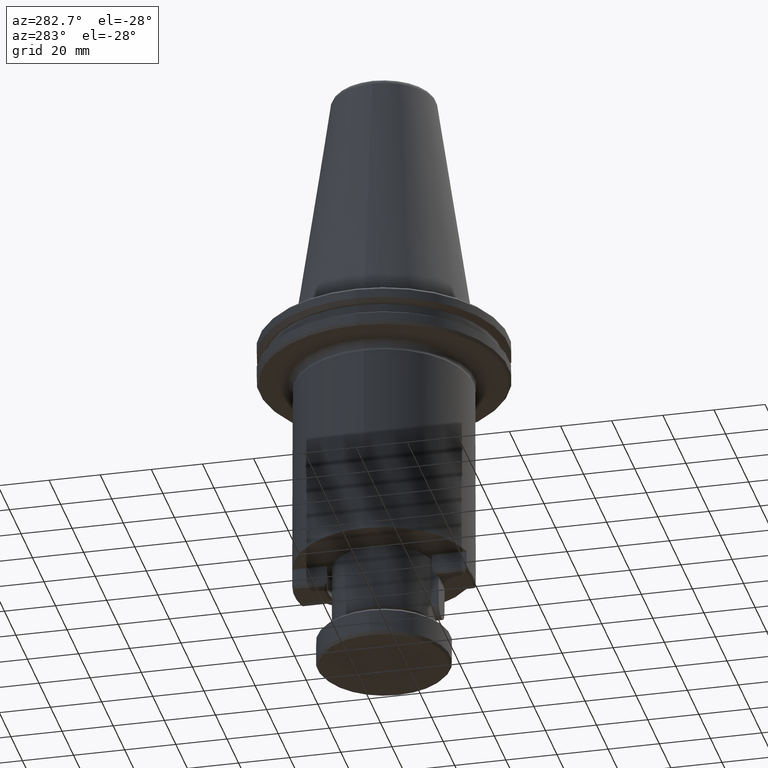
[diagram: clean part render]
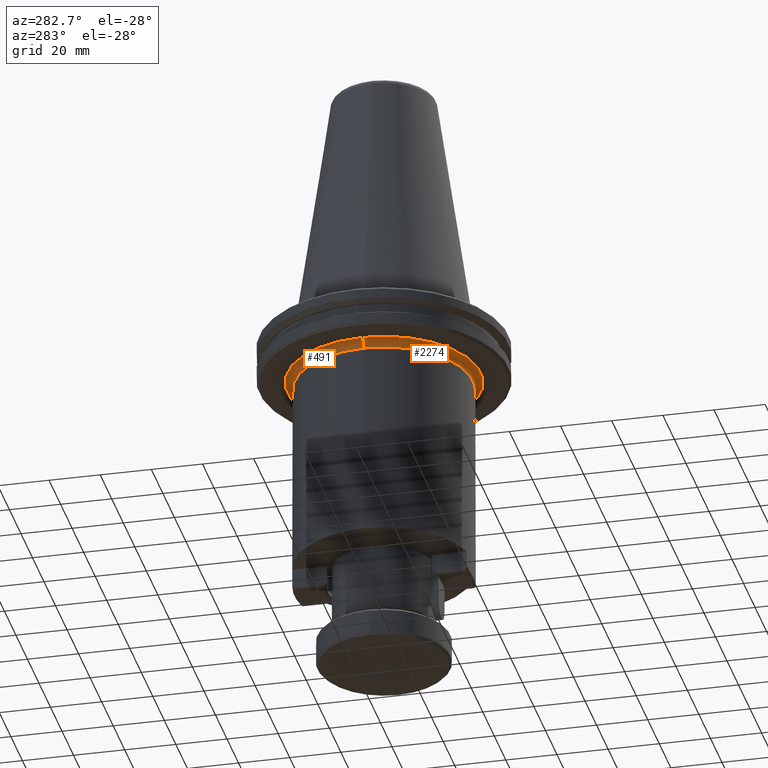
[diagram: same view with one multi-face feature highlighted, each face labeled with its STEP entity id]
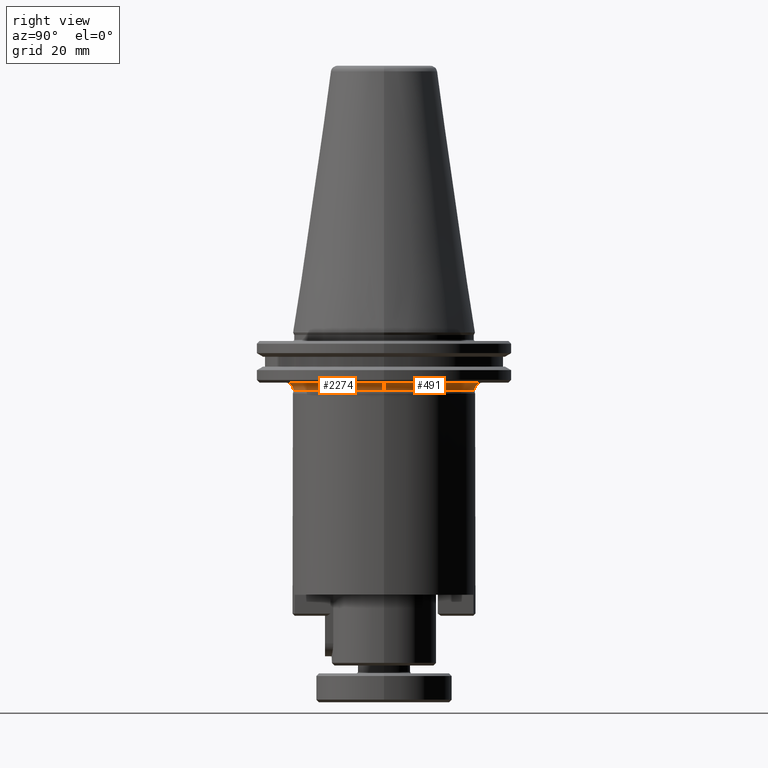
[diagram: same view with one multi-face feature highlighted, each face labeled with its STEP entity id]
A machine part, auxiliary view. The highlighted faces form ONE feature: a constant-radius fillet chain: 2 tangent blend faces with common blend radius 3 mm. The faces share edges in the B-rep.
A second angle (right view) of the same feature is appended — it is thin or edge-on in the first view.
Their STEP definitions:
[1] entity #2274 (Torus):
#119 = CIRCLE ( 'NONE', #2544, 2.999999999733715700 ) ;
#142 = VERTEX_POINT ( 'NONE', #2852 ) ;
#150 = CARTESIAN_POINT ( 'NONE',  ( 122.1529126039459800, 190.0907862128020700, 204.7002788091370500 ) ) ;
#296 = CARTESIAN_POINT ( 'NONE',  ( 84.35291260394603800, 190.0907862128020700, 201.7002788094679900 ) ) ;
#391 = DIRECTION ( 'NONE',  ( -1.000000000000000000, 0.0000000000000000000, 0.0000000000000000000 ) ) ;
#530 = DIRECTION ( 'NONE',  ( 0.0000000000000000000, 0.0000000000000000000, -1.000000000000000000 ) ) ;
#531 = CIRCLE ( 'NONE', #1104, 34.80000000026623000 ) ;
#537 = ORIENTED_EDGE ( 'NONE', *, *, #1498, .T. ) ;
#607 = VERTEX_POINT ( 'NONE', #2193 ) ;
#639 = VERTEX_POINT ( 'NONE', #2202 ) ;
#654 = CIRCLE ( 'NONE', #1184, 2.999999999733715700 ) ;
#732 = EDGE_CURVE ( 'NONE', #639, #142, #531, .T. ) ;
#756 = FACE_OUTER_BOUND ( 'NONE', #2821, .T. ) ;
#869 = CARTESIAN_POINT ( 'NONE',  ( 159.9529298831067200, 190.0907862128020700, 204.7002788091370500 ) ) ;
#1104 = AXIS2_PLACEMENT_3D ( 'NONE', #1116, #2739, #1346 ) ;
#1116 = CARTESIAN_POINT ( 'NONE',  ( 122.1529126039459800, 190.0907862128020700, 201.7002788094679900 ) ) ;
#1184 = AXIS2_PLACEMENT_3D ( 'NONE', #1369, #2982, #1610 ) ;
#1346 = DIRECTION ( 'NONE',  ( -1.000000000000000000, 0.0000000000000000000, 0.0000000000000000000 ) ) ;
#1369 = CARTESIAN_POINT ( 'NONE',  ( 159.9529126039459200, 190.0907862128020700, 201.7002788094679900 ) ) ;
#1374 = ORIENTED_EDGE ( 'NONE', *, *, #1676, .T. ) ;
#1498 = EDGE_CURVE ( 'NONE', #1639, #607, #1773, .T. ) ;
#1610 = DIRECTION ( 'NONE',  ( -1.000000000000000000, 0.0000000000000000000, 0.0000000000000000000 ) ) ;
#1639 = VERTEX_POINT ( 'NONE', #869 ) ;
#1676 = EDGE_CURVE ( 'NONE', #639, #1639, #654, .T. ) ;
#1759 = DIRECTION ( 'NONE',  ( -0.0000000000000000000, -0.0000000000000000000, -1.000000000000000000 ) ) ;
#1773 = CIRCLE ( 'NONE', #2187, 37.80001486261737400 ) ;
#1906 = DIRECTION ( 'NONE',  ( 0.0000000000000000000, -1.000000000000000000, 0.0000000000000000000 ) ) ;
#1996 = TOROIDAL_SURFACE ( 'NONE', #2929, 37.79999999999995500, 2.999999999733726300 ) ;
#2018 = EDGE_CURVE ( 'NONE', #142, #607, #119, .T. ) ;
#2187 = AXIS2_PLACEMENT_3D ( 'NONE', #150, #1759, #391 ) ;
#2193 = CARTESIAN_POINT ( 'NONE',  ( 84.35289532478526600, 190.0907862128020700, 204.7002788091370500 ) ) ;
#2202 = CARTESIAN_POINT ( 'NONE',  ( 156.9529126042122000, 190.0907862128020700, 201.7002788094679900 ) ) ;
#2274 = ADVANCED_FACE ( 'NONE', ( #756 ), #1996, .F. ) ;
#2408 = DIRECTION ( 'NONE',  ( -0.0000000000000000000, -0.0000000000000000000, -1.000000000000000000 ) ) ;
#2465 = ORIENTED_EDGE ( 'NONE', *, *, #2018, .F. ) ;
#2544 = AXIS2_PLACEMENT_3D ( 'NONE', #296, #1906, #530 ) ;
#2642 = CARTESIAN_POINT ( 'NONE',  ( 122.1529126039459800, 190.0907862128020700, 201.7002788094679900 ) ) ;
#2739 = DIRECTION ( 'NONE',  ( -0.0000000000000000000, -0.0000000000000000000, -1.000000000000000000 ) ) ;
#2821 = EDGE_LOOP ( 'NONE', ( #2885, #1374, #537, #2465 ) ) ;
#2852 = CARTESIAN_POINT ( 'NONE',  ( 87.35291260367976900, 190.0907862128020700, 201.7002788094679900 ) ) ;
#2863 = DIRECTION ( 'NONE',  ( -1.000000000000000000, 0.0000000000000000000, 0.0000000000000000000 ) ) ;
#2885 = ORIENTED_EDGE ( 'NONE', *, *, #732, .F. ) ;
#2929 = AXIS2_PLACEMENT_3D ( 'NONE', #2642, #2408, #2863 ) ;
#2982 = DIRECTION ( 'NONE',  ( -1.224646799147353200E-016, 1.000000000000000000, 0.0000000000000000000 ) ) ;
[2] entity #491 (Torus):
#105 = EDGE_CURVE ( 'NONE', #142, #639, #961, .T. ) ;
#119 = CIRCLE ( 'NONE', #2544, 2.999999999733715700 ) ;
#142 = VERTEX_POINT ( 'NONE', #2852 ) ;
#296 = CARTESIAN_POINT ( 'NONE',  ( 84.35291260394603800, 190.0907862128020700, 201.7002788094679900 ) ) ;
#491 = ADVANCED_FACE ( 'NONE', ( #2267 ), #1019, .F. ) ;
#530 = DIRECTION ( 'NONE',  ( 0.0000000000000000000, 0.0000000000000000000, -1.000000000000000000 ) ) ;
#575 = CARTESIAN_POINT ( 'NONE',  ( 122.1529126039459800, 190.0907862128020700, 201.7002788094679900 ) ) ;
#607 = VERTEX_POINT ( 'NONE', #2193 ) ;
#634 = ORIENTED_EDGE ( 'NONE', *, *, #2018, .T. ) ;
#639 = VERTEX_POINT ( 'NONE', #2202 ) ;
#654 = CIRCLE ( 'NONE', #1184, 2.999999999733715700 ) ;
#804 = DIRECTION ( 'NONE',  ( -1.000000000000000000, 0.0000000000000000000, 0.0000000000000000000 ) ) ;
#869 = CARTESIAN_POINT ( 'NONE',  ( 159.9529298831067200, 190.0907862128020700, 204.7002788091370500 ) ) ;
#961 = CIRCLE ( 'NONE', #2063, 34.80000000026623000 ) ;
#998 = DIRECTION ( 'NONE',  ( -0.0000000000000000000, -0.0000000000000000000, -1.000000000000000000 ) ) ;
#1004 = AXIS2_PLACEMENT_3D ( 'NONE', #1005, #998, #2640 ) ;
#1005 = CARTESIAN_POINT ( 'NONE',  ( 122.1529126039459800, 190.0907862128020700, 201.7002788094679900 ) ) ;
#1008 = CIRCLE ( 'NONE', #2108, 37.80001486261737400 ) ;
#1019 = TOROIDAL_SURFACE ( 'NONE', #1004, 37.79999999999995500, 2.999999999733726300 ) ;
#1049 = DIRECTION ( 'NONE',  ( -0.0000000000000000000, -0.0000000000000000000, -1.000000000000000000 ) ) ;
#1184 = AXIS2_PLACEMENT_3D ( 'NONE', #1369, #2982, #1610 ) ;
#1369 = CARTESIAN_POINT ( 'NONE',  ( 159.9529126039459200, 190.0907862128020700, 201.7002788094679900 ) ) ;
#1387 = ORIENTED_EDGE ( 'NONE', *, *, #2435, .T. ) ;
#1610 = DIRECTION ( 'NONE',  ( -1.000000000000000000, 0.0000000000000000000, 0.0000000000000000000 ) ) ;
#1639 = VERTEX_POINT ( 'NONE', #869 ) ;
#1676 = EDGE_CURVE ( 'NONE', #639, #1639, #654, .T. ) ;
#1906 = DIRECTION ( 'NONE',  ( 0.0000000000000000000, -1.000000000000000000, 0.0000000000000000000 ) ) ;
#2018 = EDGE_CURVE ( 'NONE', #142, #607, #119, .T. ) ;
#2063 = AXIS2_PLACEMENT_3D ( 'NONE', #575, #2197, #804 ) ;
#2106 = ORIENTED_EDGE ( 'NONE', *, *, #105, .F. ) ;
#2108 = AXIS2_PLACEMENT_3D ( 'NONE', #2456, #1049, #2682 ) ;
#2193 = CARTESIAN_POINT ( 'NONE',  ( 84.35289532478526600, 190.0907862128020700, 204.7002788091370500 ) ) ;
#2197 = DIRECTION ( 'NONE',  ( -0.0000000000000000000, -0.0000000000000000000, -1.000000000000000000 ) ) ;
#2202 = CARTESIAN_POINT ( 'NONE',  ( 156.9529126042122000, 190.0907862128020700, 201.7002788094679900 ) ) ;
#2267 = FACE_OUTER_BOUND ( 'NONE', #2579, .T. ) ;
#2435 = EDGE_CURVE ( 'NONE', #607, #1639, #1008, .T. ) ;
#2456 = CARTESIAN_POINT ( 'NONE',  ( 122.1529126039459800, 190.0907862128020700, 204.7002788091370500 ) ) ;
#2544 = AXIS2_PLACEMENT_3D ( 'NONE', #296, #1906, #530 ) ;
#2579 = EDGE_LOOP ( 'NONE', ( #2106, #634, #1387, #2673 ) ) ;
#2640 = DIRECTION ( 'NONE',  ( -1.000000000000000000, 0.0000000000000000000, 0.0000000000000000000 ) ) ;
#2673 = ORIENTED_EDGE ( 'NONE', *, *, #1676, .F. ) ;
#2682 = DIRECTION ( 'NONE',  ( -1.000000000000000000, 0.0000000000000000000, 0.0000000000000000000 ) ) ;
#2852 = CARTESIAN_POINT ( 'NONE',  ( 87.35291260367976900, 190.0907862128020700, 201.7002788094679900 ) ) ;
#2982 = DIRECTION ( 'NONE',  ( -1.224646799147353200E-016, 1.000000000000000000, 0.0000000000000000000 ) ) ;